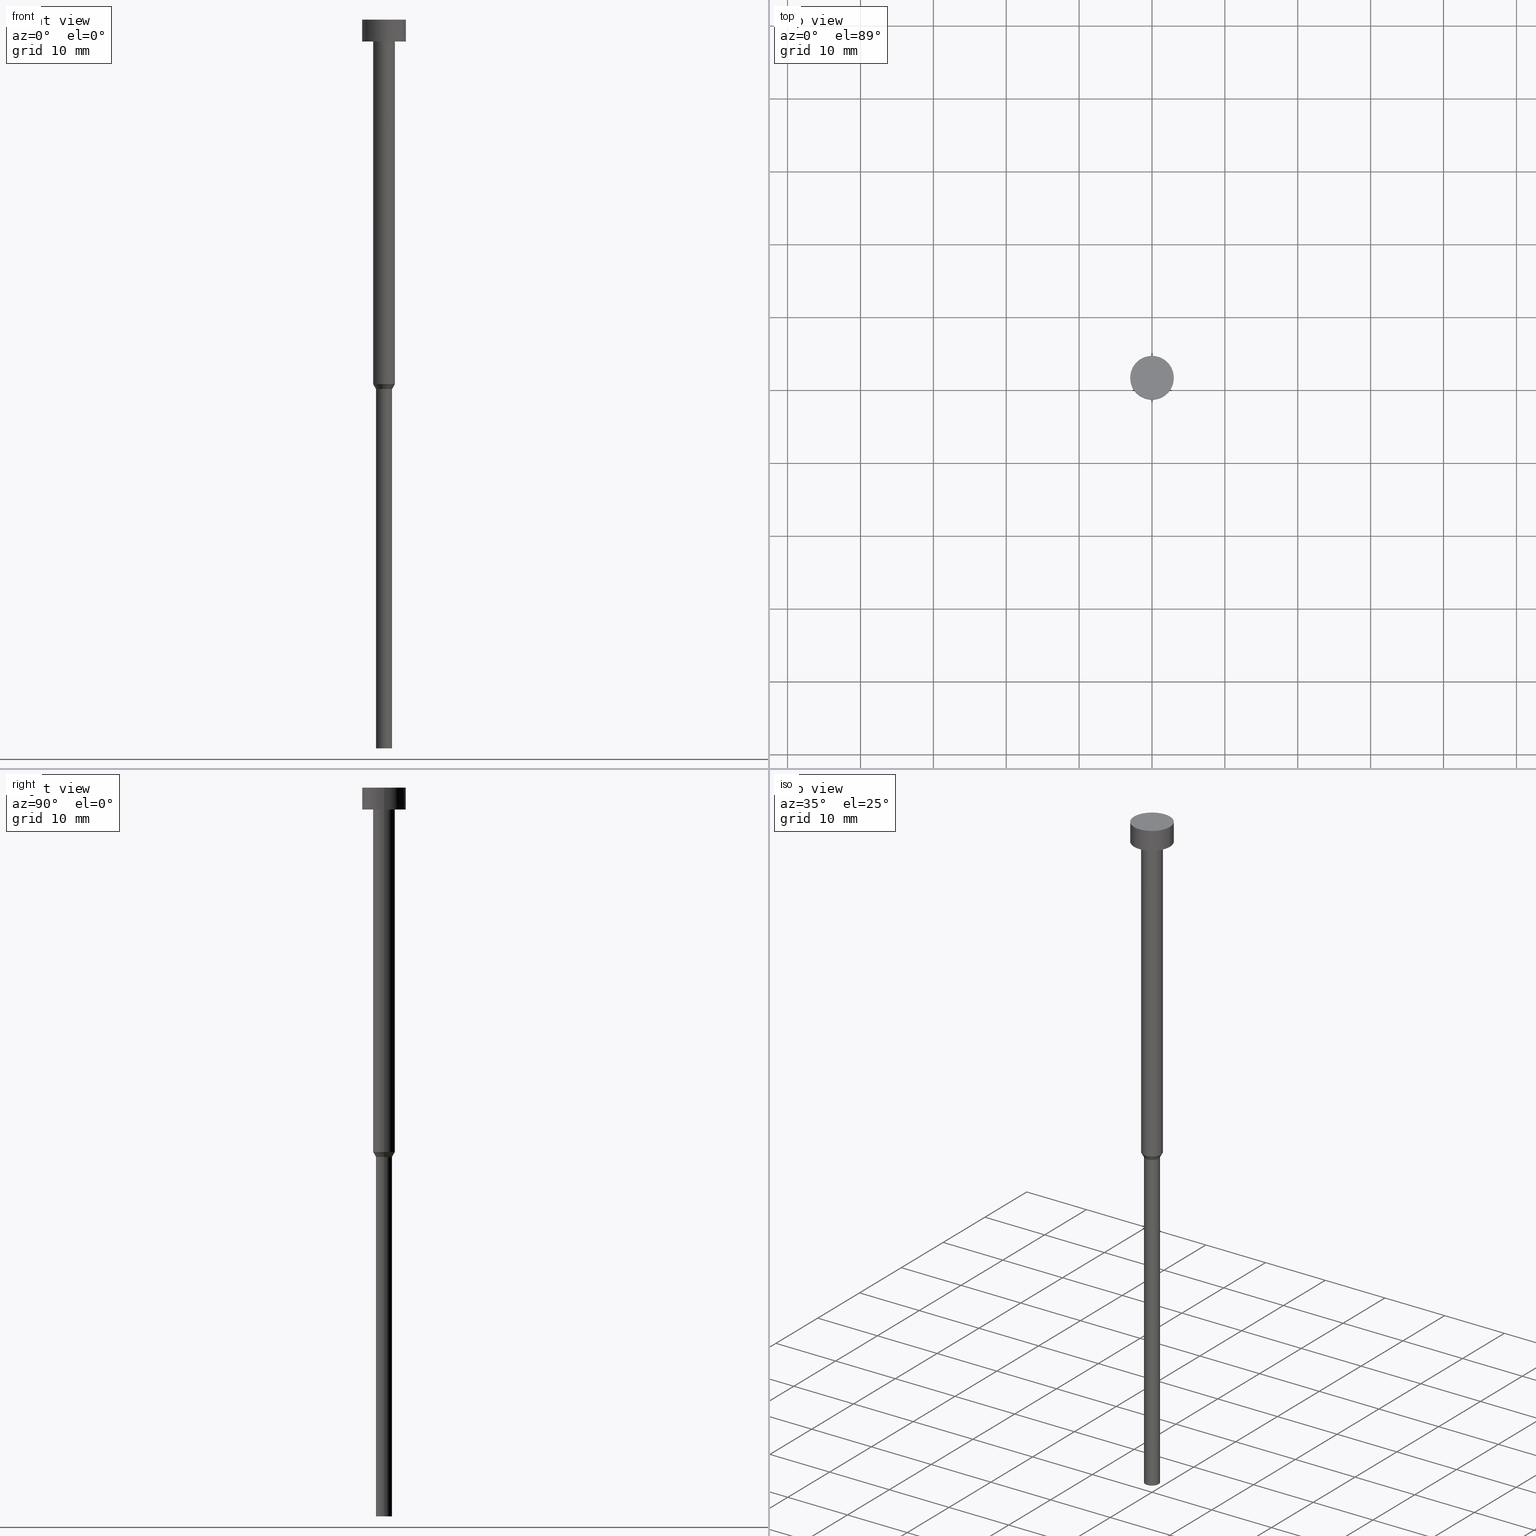
[diagram: canonical four-view strip — front | top / right | iso, engineering-drawing reading convention]
A machine part, canonical four-view strip (front | top / right | iso — engineering-drawing reading convention). The complete STEP part file that produces these views, byte-faithful:
ISO-10303-21;
HEADER;
FILE_DESCRIPTION (( 'STEP AP203' ),
    '1' );
FILE_NAME ('06d9.STEP',
    '2023-02-13T10:55:38',
    ( '' ),
    ( '' ),
    'SwSTEP 2.0',
    'SolidWorks 2019',
    '' );
FILE_SCHEMA (( 'CONFIG_CONTROL_DESIGN' ));
ENDSEC;

DATA;
#1 = DIRECTION ( 'NONE',  ( -0.000000000000000000, -0.000000000000000000, 1.000000000000000000 ) ) ;
#2 = CLOSED_SHELL ( 'NONE', ( #193, #57, #68, #61, #315, #157, #122, #299, #151, #342, #85 ) ) ;
#3 = CYLINDRICAL_SURFACE ( 'NONE', #277, 3.000000000000000000 ) ;
#4 = AXIS2_PLACEMENT_3D ( 'NONE', #230, #283, #281 ) ;
#5 = CARTESIAN_POINT ( 'NONE',  ( 0.000000000000000000, 0.000000000000000000, -50.00000000000000000 ) ) ;
#6 = CC_DESIGN_DATE_AND_TIME_ASSIGNMENT ( #263, #121, ( #141 ) ) ;
#7 = FACE_OUTER_BOUND ( 'NONE', #244, .T. ) ;
#8 = EDGE_CURVE ( 'NONE', #182, #17, #16, .T. ) ;
#9 = DIRECTION ( 'NONE',  ( -0.000000000000000000, -0.000000000000000000, 1.000000000000000000 ) ) ;
#10 = EDGE_CURVE ( 'NONE', #132, #156, #84, .T. ) ;
#11 = ORGANIZATION ( 'NEUR�EN�', 'NEUR�EN�', '' ) ;
#12 = LINE ( 'NONE', #229, #194 ) ;
#13 = APPROVAL_ROLE ( '' ) ;
#14 = EDGE_CURVE ( 'NONE', #198, #25, #134, .T. ) ;
#15 = DIRECTION ( 'NONE',  ( 0.000000000000000000, 0.000000000000000000, 1.000000000000000000 ) ) ;
#16 = CIRCLE ( 'NONE', #242, 3.000000000000000000 ) ;
#17 = VERTEX_POINT ( 'NONE', #276 ) ;
#18 = CC_DESIGN_APPROVAL ( #173, ( #141 ) ) ;
#19 = ORIENTED_EDGE ( 'NONE', *, *, #266, .T. ) ;
#20 = CARTESIAN_POINT ( 'NONE',  ( 0.000000000000000000, 0.000000000000000000, -50.69282032302754715 ) ) ;
#21 = ORIENTED_EDGE ( 'NONE', *, *, #93, .T. ) ;
#22 = DATE_AND_TIME ( #240, #354 ) ;
#23 = AXIS2_PLACEMENT_3D ( 'NONE', #168, #248, #274 ) ;
#24 = ORIENTED_EDGE ( 'NONE', *, *, #93, .F. ) ;
#25 = VERTEX_POINT ( 'NONE', #29 ) ;
#26 = CARTESIAN_POINT ( 'NONE',  ( 1.100000000000000089, 0.000000000000000000, -50.69282032302754715 ) ) ;
#27 = DIRECTION ( 'NONE',  ( 1.000000000000000000, 0.000000000000000000, 0.000000000000000000 ) ) ;
#28 = CC_DESIGN_PERSON_AND_ORGANIZATION_ASSIGNMENT ( #102, #155, ( #92 ) ) ;
#29 = CARTESIAN_POINT ( 'NONE',  ( 1.500000000000000000, 0.000000000000000000, -50.00000000000000000 ) ) ;
#30 = DIRECTION ( 'NONE',  ( -0.000000000000000000, -0.000000000000000000, 1.000000000000000000 ) ) ;
#31 = DIRECTION ( 'NONE',  ( -0.000000000000000000, -0.000000000000000000, 1.000000000000000000 ) ) ;
#32 = CARTESIAN_POINT ( 'NONE',  ( -3.000000000000000000, 3.673940397442059868E-16, -3.673940397442059868E-16 ) ) ;
#33 = PRODUCT_DEFINITION_FORMATION_WITH_SPECIFIED_SOURCE ( 'LIBOVOLN�', '', #170, .NOT_KNOWN. ) ;
#34 = DIRECTION ( 'NONE',  ( -0.000000000000000000, -0.000000000000000000, 1.000000000000000000 ) ) ;
#35 = LINE ( 'NONE', #64, #282 ) ;
#36 = DIRECTION ( 'NONE',  ( -0.000000000000000000, -0.000000000000000000, 1.000000000000000000 ) ) ;
#37 = AXIS2_PLACEMENT_3D ( 'NONE', #120, #234, #203 ) ;
#38 = CARTESIAN_POINT ( 'NONE',  ( 3.000000000000000000, 0.000000000000000000, 0.000000000000000000 ) ) ;
#39 = COORDINATED_UNIVERSAL_TIME_OFFSET ( 1, 0, .AHEAD. ) ;
#40 = VERTEX_POINT ( 'NONE', #86 ) ;
#41 = CALENDAR_DATE ( 2023, 13, 2 ) ;
#42 = CIRCLE ( 'NONE', #228, 1.500000000000000000 ) ;
#43 = CIRCLE ( 'NONE', #99, 1.500000000000000000 ) ;
#44 = APPROVAL_STATUS ( 'not_yet_approved' ) ;
#45 = VERTEX_POINT ( 'NONE', #26 ) ;
#46 = SECURITY_CLASSIFICATION_LEVEL ( 'unclassified' ) ;
#47 = EDGE_CURVE ( 'NONE', #17, #132, #52, .T. ) ;
#48 = ORIENTED_EDGE ( 'NONE', *, *, #10, .T. ) ;
#49 = EDGE_CURVE ( 'NONE', #271, #198, #54, .T. ) ;
#50 = SHAPE_DEFINITION_REPRESENTATION ( #214, #101 ) ;
#51 = CIRCLE ( 'NONE', #223, 1.500000000000000000 ) ;
#52 = LINE ( 'NONE', #278, #208 ) ;
#53 = EDGE_CURVE ( 'NONE', #125, #271, #82, .T. ) ;
#54 = LINE ( 'NONE', #331, #275 ) ;
#55 = CC_DESIGN_PERSON_AND_ORGANIZATION_ASSIGNMENT ( #71, #179, ( #170 ) ) ;
#56 = CARTESIAN_POINT ( 'NONE',  ( -1.100000000000000089, 1.347111479062088503E-16, -100.0000000000000000 ) ) ;
#57 = ADVANCED_FACE ( 'NONE', ( #251 ), #112, .T. ) ;
#58 = DIRECTION ( 'NONE',  ( -0.000000000000000000, -0.000000000000000000, 1.000000000000000000 ) ) ;
#59 = CIRCLE ( 'NONE', #238, 1.100000000000000089 ) ;
#60 = FACE_OUTER_BOUND ( 'NONE', #154, .T. ) ;
#61 = ADVANCED_FACE ( 'NONE', ( #273 ), #330, .T. ) ;
#62 = DIRECTION ( 'NONE',  ( 1.000000000000000000, 0.000000000000000000, 0.000000000000000000 ) ) ;
#63 = CARTESIAN_POINT ( 'NONE',  ( 1.100000000000000089, 0.000000000000000000, -100.0000000000000000 ) ) ;
#64 = CARTESIAN_POINT ( 'NONE',  ( 1.500000000000000000, 0.000000000000000000, 0.000000000000000000 ) ) ;
#65 = CC_DESIGN_PERSON_AND_ORGANIZATION_ASSIGNMENT ( #295, #264, ( #33 ) ) ;
#66 = LINE ( 'NONE', #38, #328 ) ;
#67 = DIRECTION ( 'NONE',  ( -0.000000000000000000, -0.000000000000000000, 1.000000000000000000 ) ) ;
#68 = ADVANCED_FACE ( 'NONE', ( #60 ), #177, .T. ) ;
#69 = ORIENTED_EDGE ( 'NONE', *, *, #115, .T. ) ;
#70 = CC_DESIGN_PERSON_AND_ORGANIZATION_ASSIGNMENT ( #243, #346, ( #141 ) ) ;
#71 = PERSON_AND_ORGANIZATION ( #124, #11 ) ;
#72 = ORIENTED_EDGE ( 'NONE', *, *, #130, .T. ) ;
#73 = ORIENTED_EDGE ( 'NONE', *, *, #8, .T. ) ;
#74 = DIRECTION ( 'NONE',  ( 1.000000000000000000, 0.000000000000000000, 0.000000000000000000 ) ) ;
#75 = EDGE_LOOP ( 'NONE', ( #355, #317, #21, #294 ) ) ;
#76 = COORDINATED_UNIVERSAL_TIME_OFFSET ( 1, 0, .AHEAD. ) ;
#77 = ORIENTED_EDGE ( 'NONE', *, *, #318, .T. ) ;
#78 = DIRECTION ( 'NONE',  ( 1.000000000000000000, 0.000000000000000000, 0.000000000000000000 ) ) ;
#79 = CONICAL_SURFACE ( 'NONE', #313, 1.500000000000000000, 0.5235987755983019243 ) ;
#80 = DIRECTION ( 'NONE',  ( -0.000000000000000000, -0.000000000000000000, 1.000000000000000000 ) ) ;
#81 = DIRECTION ( 'NONE',  ( -0.000000000000000000, -0.000000000000000000, 1.000000000000000000 ) ) ;
#82 = LINE ( 'NONE', #163, #320 ) ;
#83 = AXIS2_PLACEMENT_3D ( 'NONE', #225, #192, #195 ) ;
#84 = CIRCLE ( 'NONE', #83, 3.000000000000000000 ) ;
#85 = ADVANCED_FACE ( 'NONE', ( #224 ), #139, .T. ) ;
#86 = CARTESIAN_POINT ( 'NONE',  ( 1.500000000000000000, 0.000000000000000000, -3.000000000000000888 ) ) ;
#87 = AXIS2_PLACEMENT_3D ( 'NONE', #20, #212, #74 ) ;
#88 = CARTESIAN_POINT ( 'NONE',  ( 0.000000000000000000, 0.000000000000000000, 0.000000000000000000 ) ) ;
#89 = DIRECTION ( 'NONE',  ( -0.000000000000000000, -0.000000000000000000, 1.000000000000000000 ) ) ;
#90 = EDGE_CURVE ( 'NONE', #17, #182, #191, .T. ) ;
#91 = FACE_OUTER_BOUND ( 'NONE', #103, .T. ) ;
#92 = PRODUCT_DEFINITION ( 'NEZN�M�', '', #33, #187 ) ;
#93 = EDGE_CURVE ( 'NONE', #268, #45, #351, .T. ) ;
#94 = CARTESIAN_POINT ( 'NONE',  ( 1.500000000000000000, 0.000000000000000000, -50.00000000000000000 ) ) ;
#95 = DIRECTION ( 'NONE',  ( -0.000000000000000000, -0.000000000000000000, 1.000000000000000000 ) ) ;
#96 = APPLICATION_PROTOCOL_DEFINITION ( 'international standard', 'config_control_design', 1994, #272 ) ;
#97 = ORIENTED_EDGE ( 'NONE', *, *, #115, .F. ) ;
#98 = APPLICATION_CONTEXT ( 'configuration controlled 3d designs of mechanical parts and assemblies' ) ;
#99 = AXIS2_PLACEMENT_3D ( 'NONE', #310, #95, #258 ) ;
#100 = ORIENTED_EDGE ( 'NONE', *, *, #302, .F. ) ;
#101 = ADVANCED_BREP_SHAPE_REPRESENTATION ( '06d9', ( #206, #172 ), #136 ) ;
#102 = PERSON_AND_ORGANIZATION ( #124, #11 ) ;
#103 = EDGE_LOOP ( 'NONE', ( #105, #184, #77, #97 ) ) ;
#104 = CARTESIAN_POINT ( 'NONE',  ( 0.000000000000000000, 0.000000000000000000, 0.000000000000000000 ) ) ;
#105 = ORIENTED_EDGE ( 'NONE', *, *, #266, .F. ) ;
#106 = CC_DESIGN_SECURITY_CLASSIFICATION ( #141, ( #33 ) ) ;
#107 = VERTEX_POINT ( 'NONE', #327 ) ;
#108 = DIRECTION ( 'NONE',  ( 1.000000000000000000, 0.000000000000000000, 0.000000000000000000 ) ) ;
#109 = CARTESIAN_POINT ( 'NONE',  ( 0.000000000000000000, 0.000000000000000000, -3.000000000000000888 ) ) ;
#110 = AXIS2_PLACEMENT_3D ( 'NONE', #88, #34, #142 ) ;
#111 = CARTESIAN_POINT ( 'NONE',  ( 0.000000000000000000, 0.000000000000000000, -50.00000000000000000 ) ) ;
#112 = CYLINDRICAL_SURFACE ( 'NONE', #345, 1.500000000000000000 ) ;
#113 = CARTESIAN_POINT ( 'NONE',  ( 1.100000000000000089, 0.000000000000000000, 0.000000000000000000 ) ) ;
#114 = DIRECTION ( 'NONE',  ( -0.000000000000000000, -0.000000000000000000, 1.000000000000000000 ) ) ;
#115 = EDGE_CURVE ( 'NONE', #107, #40, #42, .T. ) ;
#116 = CARTESIAN_POINT ( 'NONE',  ( 3.000000000000000000, 0.000000000000000000, -3.673940397442059868E-16 ) ) ;
#117 = CYLINDRICAL_SURFACE ( 'NONE', #4, 3.000000000000000000 ) ;
#118 = DIRECTION ( 'NONE',  ( 0.5000000000000026645, 0.000000000000000000, 0.8660254037844371533 ) ) ;
#119 = LOCAL_TIME ( 11, 55, 38.00000000000000000, #189 ) ;
#120 = CARTESIAN_POINT ( 'NONE',  ( 0.000000000000000000, 0.000000000000000000, -100.0000000000000000 ) ) ;
#121 = DATE_TIME_ROLE ( 'classification_date' ) ;
#122 = ADVANCED_FACE ( 'NONE', ( #249 ), #79, .T. ) ;
#123 = DATE_AND_TIME ( #343, #131 ) ;
#124 = PERSON ( 'NEUR�EN�', 'NEUR�EN�', 'NEUR�EN�', ('NEUR�EN�'), ('NEUR�EN�'), ('NEUR�EN�') ) ;
#125 = VERTEX_POINT ( 'NONE', #56 ) ;
#126 = CIRCLE ( 'NONE', #145, 1.100000000000000089 ) ;
#127 = ORIENTED_EDGE ( 'NONE', *, *, #8, .F. ) ;
#128 =( NAMED_UNIT ( * ) SI_UNIT ( $, .STERADIAN. ) SOLID_ANGLE_UNIT ( ) );
#129 = ORIENTED_EDGE ( 'NONE', *, *, #197, .F. ) ;
#130 = EDGE_CURVE ( 'NONE', #45, #25, #334, .T. ) ;
#131 = LOCAL_TIME ( 11, 55, 38.00000000000000000, #147 ) ;
#132 = VERTEX_POINT ( 'NONE', #32 ) ;
#133 = DIRECTION ( 'NONE',  ( 0.000000000000000000, -0.000000000000000000, 1.000000000000000000 ) ) ;
#134 = CIRCLE ( 'NONE', #286, 1.500000000000000000 ) ;
#135 = DIRECTION ( 'NONE',  ( 1.000000000000000000, 0.000000000000000000, 0.000000000000000000 ) ) ;
#136 =( GEOMETRIC_REPRESENTATION_CONTEXT ( 3 ) GLOBAL_UNCERTAINTY_ASSIGNED_CONTEXT ( ( #148 ) ) GLOBAL_UNIT_ASSIGNED_CONTEXT ( ( #186, #236, #128 ) ) REPRESENTATION_CONTEXT ( 'NONE', 'WORKASPACE' ) );
#137 = DIRECTION ( 'NONE',  ( 1.000000000000000000, 0.000000000000000000, 0.000000000000000000 ) ) ;
#138 = ORIENTED_EDGE ( 'NONE', *, *, #260, .T. ) ;
#139 = PLANE ( 'NONE',  #226 ) ;
#140 = CARTESIAN_POINT ( 'NONE',  ( 0.000000000000000000, 0.000000000000000000, 0.000000000000000000 ) ) ;
#141 = SECURITY_CLASSIFICATION ( '', '', #46 ) ;
#142 = DIRECTION ( 'NONE',  ( 1.000000000000000000, 0.000000000000000000, 0.000000000000000000 ) ) ;
#143 = DIRECTION ( 'NONE',  ( 1.000000000000000000, 0.000000000000000000, 0.000000000000000000 ) ) ;
#144 = DIRECTION ( 'NONE',  ( 1.000000000000000000, 0.000000000000000000, 0.000000000000000000 ) ) ;
#145 = AXIS2_PLACEMENT_3D ( 'NONE', #338, #89, #261 ) ;
#146 = CALENDAR_DATE ( 2023, 13, 2 ) ;
#147 = COORDINATED_UNIVERSAL_TIME_OFFSET ( 1, 0, .AHEAD. ) ;
#148 = UNCERTAINTY_MEASURE_WITH_UNIT (LENGTH_MEASURE( 1.000000000000000082E-05 ), #186, 'distance_accuracy_value', 'NONE');
#149 = EDGE_LOOP ( 'NONE', ( #239, #69 ) ) ;
#150 = DATE_AND_TIME ( #41, #204 ) ;
#151 = ADVANCED_FACE ( 'NONE', ( #169, #207 ), #312, .T. ) ;
#152 = ORIENTED_EDGE ( 'NONE', *, *, #174, .F. ) ;
#153 = DIRECTION ( 'NONE',  ( 1.000000000000000000, 0.000000000000000000, 0.000000000000000000 ) ) ;
#154 = EDGE_LOOP ( 'NONE', ( #188, #164, #296, #324 ) ) ;
#155 = PERSON_AND_ORGANIZATION_ROLE ( 'creator' ) ;
#156 = VERTEX_POINT ( 'NONE', #116 ) ;
#157 = ADVANCED_FACE ( 'NONE', ( #287 ), #336, .T. ) ;
#158 = APPROVAL_STATUS ( 'not_yet_approved' ) ;
#159 = EDGE_LOOP ( 'NONE', ( #241, #48 ) ) ;
#160 = APPROVAL ( #181, 'NEUR�EN�' ) ;
#161 = CIRCLE ( 'NONE', #347, 3.000000000000000000 ) ;
#162 = DIRECTION ( 'NONE',  ( 1.000000000000000000, 0.000000000000000000, 0.000000000000000000 ) ) ;
#163 = CARTESIAN_POINT ( 'NONE',  ( -1.100000000000000089, 1.347111479062088503E-16, 0.000000000000000000 ) ) ;
#164 = ORIENTED_EDGE ( 'NONE', *, *, #49, .T. ) ;
#165 = COORDINATED_UNIVERSAL_TIME_OFFSET ( 1, 0, .AHEAD. ) ;
#166 = LOCAL_TIME ( 11, 55, 38.00000000000000000, #165 ) ;
#167 = CARTESIAN_POINT ( 'NONE',  ( 0.000000000000000000, 0.000000000000000000, -1.836970198721029934E-16 ) ) ;
#168 = CARTESIAN_POINT ( 'NONE',  ( 0.000000000000000000, 0.000000000000000000, -50.00000000000000000 ) ) ;
#169 = FACE_BOUND ( 'NONE', #149, .T. ) ;
#170 = PRODUCT ( '06d9', '06d9', '', ( #316 ) ) ;
#171 = CYLINDRICAL_SURFACE ( 'NONE', #110, 1.500000000000000000 ) ;
#172 = AXIS2_PLACEMENT_3D ( 'NONE', #341, #15, #297 ) ;
#173 = APPROVAL ( #158, 'NEUR�EN�' ) ;
#174 = EDGE_CURVE ( 'NONE', #156, #132, #161, .T. ) ;
#175 = CARTESIAN_POINT ( 'NONE',  ( 0.000000000000000000, -3.000000000000000000, -3.000000000000000888 ) ) ;
#176 = DIRECTION ( 'NONE',  ( -1.000000000000000000, 0.000000000000000000, -0.000000000000000000 ) ) ;
#177 = CONICAL_SURFACE ( 'NONE', #23, 1.500000000000000000, 0.5235987755983019243 ) ;
#178 = DIRECTION ( 'NONE',  ( 0.000000000000000000, 0.000000000000000000, -1.000000000000000000 ) ) ;
#179 = PERSON_AND_ORGANIZATION_ROLE ( 'design_owner' ) ;
#180 = EDGE_LOOP ( 'NONE', ( #322, #218, #298, #325 ) ) ;
#181 = APPROVAL_STATUS ( 'not_yet_approved' ) ;
#182 = VERTEX_POINT ( 'NONE', #284 ) ;
#183 = PERSON_AND_ORGANIZATION ( #124, #11 ) ;
#184 = ORIENTED_EDGE ( 'NONE', *, *, #14, .T. ) ;
#185 = AXIS2_PLACEMENT_3D ( 'NONE', #140, #232, #335 ) ;
#186 =( LENGTH_UNIT ( ) NAMED_UNIT ( * ) SI_UNIT ( .MILLI., .METRE. ) );
#187 = DESIGN_CONTEXT ( 'detailed design', #98, 'design' ) ;
#188 = ORIENTED_EDGE ( 'NONE', *, *, #256, .T. ) ;
#189 = COORDINATED_UNIVERSAL_TIME_OFFSET ( 1, 0, .AHEAD. ) ;
#190 = ORIENTED_EDGE ( 'NONE', *, *, #326, .T. ) ;
#191 = CIRCLE ( 'NONE', #254, 3.000000000000000000 ) ;
#192 = DIRECTION ( 'NONE',  ( -0.000000000000000000, -0.000000000000000000, 1.000000000000000000 ) ) ;
#193 = ADVANCED_FACE ( 'NONE', ( #201 ), #117, .T. ) ;
#194 = VECTOR ( 'NONE', #202, 1000.000000000000000 ) ;
#195 = DIRECTION ( 'NONE',  ( 1.000000000000000000, 0.000000000000000000, 0.000000000000000000 ) ) ;
#196 = DIRECTION ( 'NONE',  ( 1.000000000000000000, 0.000000000000000000, 0.000000000000000000 ) ) ;
#197 = EDGE_CURVE ( 'NONE', #125, #268, #59, .T. ) ;
#198 = VERTEX_POINT ( 'NONE', #257 ) ;
#199 = AXIS2_PLACEMENT_3D ( 'NONE', #175, #178, #176 ) ;
#200 = DIRECTION ( 'NONE',  ( -0.5000000000000026645, 6.123233995736798083E-17, 0.8660254037844371533 ) ) ;
#201 = FACE_OUTER_BOUND ( 'NONE', #291, .T. ) ;
#202 = DIRECTION ( 'NONE',  ( -0.000000000000000000, -0.000000000000000000, 1.000000000000000000 ) ) ;
#203 = DIRECTION ( 'NONE',  ( -1.000000000000000000, 0.000000000000000000, -0.000000000000000000 ) ) ;
#204 = LOCAL_TIME ( 11, 55, 38.00000000000000000, #76 ) ;
#205 = CARTESIAN_POINT ( 'NONE',  ( 0.000000000000000000, 0.000000000000000000, -100.0000000000000000 ) ) ;
#206 = MANIFOLD_SOLID_BREP ( 'Rotovat1', #2 ) ;
#207 = FACE_OUTER_BOUND ( 'NONE', #213, .T. ) ;
#208 = VECTOR ( 'NONE', #349, 1000.000000000000000 ) ;
#209 = DIRECTION ( 'NONE',  ( -0.000000000000000000, -0.000000000000000000, 1.000000000000000000 ) ) ;
#210 = CIRCLE ( 'NONE', #245, 1.100000000000000089 ) ;
#211 = ORIENTED_EDGE ( 'NONE', *, *, #90, .F. ) ;
#212 = DIRECTION ( 'NONE',  ( -0.000000000000000000, -0.000000000000000000, 1.000000000000000000 ) ) ;
#213 = EDGE_LOOP ( 'NONE', ( #127, #211 ) ) ;
#214 = PRODUCT_DEFINITION_SHAPE ( 'NONE', 'NONE',  #92 ) ;
#215 = PERSON_AND_ORGANIZATION ( #124, #11 ) ;
#216 = ORIENTED_EDGE ( 'NONE', *, *, #318, .F. ) ;
#217 = CC_DESIGN_APPROVAL ( #280, ( #33 ) ) ;
#218 = ORIENTED_EDGE ( 'NONE', *, *, #90, .T. ) ;
#219 = CC_DESIGN_PERSON_AND_ORGANIZATION_ASSIGNMENT ( #183, #292, ( #33 ) ) ;
#220 = EDGE_LOOP ( 'NONE', ( #190, #319, #265, #24 ) ) ;
#221 = CALENDAR_DATE ( 2023, 13, 2 ) ;
#222 = DIRECTION ( 'NONE',  ( -0.000000000000000000, -0.000000000000000000, 1.000000000000000000 ) ) ;
#223 = AXIS2_PLACEMENT_3D ( 'NONE', #5, #9, #143 ) ;
#224 = FACE_OUTER_BOUND ( 'NONE', #159, .T. ) ;
#225 = CARTESIAN_POINT ( 'NONE',  ( 0.000000000000000000, 0.000000000000000000, -3.673940397442059868E-16 ) ) ;
#226 = AXIS2_PLACEMENT_3D ( 'NONE', #167, #133, #27 ) ;
#227 = DIRECTION ( 'NONE',  ( -0.000000000000000000, -0.000000000000000000, 1.000000000000000000 ) ) ;
#228 = AXIS2_PLACEMENT_3D ( 'NONE', #109, #80, #135 ) ;
#229 = CARTESIAN_POINT ( 'NONE',  ( -1.500000000000000000, 1.836970198721029934E-16, 0.000000000000000000 ) ) ;
#230 = CARTESIAN_POINT ( 'NONE',  ( 0.000000000000000000, 0.000000000000000000, 0.000000000000000000 ) ) ;
#231 = PLANE ( 'NONE',  #37 ) ;
#232 = DIRECTION ( 'NONE',  ( -0.000000000000000000, -0.000000000000000000, 1.000000000000000000 ) ) ;
#233 = APPROVAL_PERSON_ORGANIZATION ( #215, #280, #13 ) ;
#234 = DIRECTION ( 'NONE',  ( 0.000000000000000000, 0.000000000000000000, -1.000000000000000000 ) ) ;
#235 = PRODUCT_RELATED_PRODUCT_CATEGORY ( 'detail', '', ( #170 ) ) ;
#236 =( NAMED_UNIT ( * ) PLANE_ANGLE_UNIT ( ) SI_UNIT ( $, .RADIAN. ) );
#237 = DATE_TIME_ROLE ( 'creation_date' ) ;
#238 = AXIS2_PLACEMENT_3D ( 'NONE', #285, #36, #144 ) ;
#239 = ORIENTED_EDGE ( 'NONE', *, *, #302, .T. ) ;
#240 = CALENDAR_DATE ( 2023, 13, 2 ) ;
#241 = ORIENTED_EDGE ( 'NONE', *, *, #174, .T. ) ;
#242 = AXIS2_PLACEMENT_3D ( 'NONE', #300, #353, #78 ) ;
#243 = PERSON_AND_ORGANIZATION ( #124, #11 ) ;
#244 = EDGE_LOOP ( 'NONE', ( #314, #129 ) ) ;
#245 = AXIS2_PLACEMENT_3D ( 'NONE', #205, #311, #259 ) ;
#246 = CC_DESIGN_DATE_AND_TIME_ASSIGNMENT ( #123, #237, ( #92 ) ) ;
#247 = EDGE_LOOP ( 'NONE', ( #269, #289, #72, #348 ) ) ;
#248 = DIRECTION ( 'NONE',  ( -0.000000000000000000, -0.000000000000000000, 1.000000000000000000 ) ) ;
#249 = FACE_OUTER_BOUND ( 'NONE', #247, .T. ) ;
#250 = CC_DESIGN_APPROVAL ( #160, ( #92 ) ) ;
#251 = FACE_OUTER_BOUND ( 'NONE', #333, .T. ) ;
#252 = DATE_AND_TIME ( #221, #166 ) ;
#253 = CARTESIAN_POINT ( 'NONE',  ( 0.000000000000000000, 0.000000000000000000, -3.000000000000000888 ) ) ;
#254 = AXIS2_PLACEMENT_3D ( 'NONE', #253, #1, #108 ) ;
#255 = FACE_OUTER_BOUND ( 'NONE', #180, .T. ) ;
#256 = EDGE_CURVE ( 'NONE', #45, #271, #126, .T. ) ;
#257 = CARTESIAN_POINT ( 'NONE',  ( -1.500000000000000000, 1.836970198721029934E-16, -50.00000000000000000 ) ) ;
#258 = DIRECTION ( 'NONE',  ( 1.000000000000000000, 0.000000000000000000, 0.000000000000000000 ) ) ;
#259 = DIRECTION ( 'NONE',  ( 1.000000000000000000, 0.000000000000000000, 0.000000000000000000 ) ) ;
#260 = EDGE_CURVE ( 'NONE', #25, #198, #51, .T. ) ;
#261 = DIRECTION ( 'NONE',  ( 1.000000000000000000, 0.000000000000000000, 0.000000000000000000 ) ) ;
#262 = APPROVAL_PERSON_ORGANIZATION ( #270, #173, #352 ) ;
#263 = DATE_AND_TIME ( #146, #119 ) ;
#264 = PERSON_AND_ORGANIZATION_ROLE ( 'design_supplier' ) ;
#265 = ORIENTED_EDGE ( 'NONE', *, *, #256, .F. ) ;
#266 = EDGE_CURVE ( 'NONE', #198, #107, #12, .T. ) ;
#267 = APPROVAL_DATE_TIME ( #150, #280 ) ;
#268 = VERTEX_POINT ( 'NONE', #63 ) ;
#269 = ORIENTED_EDGE ( 'NONE', *, *, #49, .F. ) ;
#270 = PERSON_AND_ORGANIZATION ( #124, #11 ) ;
#271 = VERTEX_POINT ( 'NONE', #308 ) ;
#272 = APPLICATION_CONTEXT ( 'configuration controlled 3d designs of mechanical parts and assemblies' ) ;
#273 = FACE_OUTER_BOUND ( 'NONE', #220, .T. ) ;
#274 = DIRECTION ( 'NONE',  ( 1.000000000000000000, 0.000000000000000000, 0.000000000000000000 ) ) ;
#275 = VECTOR ( 'NONE', #200, 1000.000000000000000 ) ;
#276 = CARTESIAN_POINT ( 'NONE',  ( -3.000000000000000000, 3.673940397442059868E-16, -3.000000000000000888 ) ) ;
#277 = AXIS2_PLACEMENT_3D ( 'NONE', #104, #209, #153 ) ;
#278 = CARTESIAN_POINT ( 'NONE',  ( -3.000000000000000000, 3.673940397442059868E-16, 0.000000000000000000 ) ) ;
#279 = CARTESIAN_POINT ( 'NONE',  ( 0.000000000000000000, 0.000000000000000000, 0.000000000000000000 ) ) ;
#280 = APPROVAL ( #44, 'NEUR�EN�' ) ;
#281 = DIRECTION ( 'NONE',  ( 1.000000000000000000, 0.000000000000000000, 0.000000000000000000 ) ) ;
#282 = VECTOR ( 'NONE', #339, 1000.000000000000000 ) ;
#283 = DIRECTION ( 'NONE',  ( -0.000000000000000000, -0.000000000000000000, 1.000000000000000000 ) ) ;
#284 = CARTESIAN_POINT ( 'NONE',  ( 3.000000000000000000, 0.000000000000000000, -3.000000000000000888 ) ) ;
#285 = CARTESIAN_POINT ( 'NONE',  ( 0.000000000000000000, 0.000000000000000000, -100.0000000000000000 ) ) ;
#286 = AXIS2_PLACEMENT_3D ( 'NONE', #301, #222, #137 ) ;
#287 = FACE_OUTER_BOUND ( 'NONE', #75, .T. ) ;
#288 = PERSON_AND_ORGANIZATION ( #124, #11 ) ;
#289 = ORIENTED_EDGE ( 'NONE', *, *, #350, .T. ) ;
#290 = APPROVAL_DATE_TIME ( #22, #160 ) ;
#291 = EDGE_LOOP ( 'NONE', ( #73, #304, #152, #344 ) ) ;
#292 = PERSON_AND_ORGANIZATION_ROLE ( 'creator' ) ;
#293 = VECTOR ( 'NONE', #227, 1000.000000000000000 ) ;
#294 = ORIENTED_EDGE ( 'NONE', *, *, #350, .F. ) ;
#295 = PERSON_AND_ORGANIZATION ( #124, #11 ) ;
#296 = ORIENTED_EDGE ( 'NONE', *, *, #260, .F. ) ;
#297 = DIRECTION ( 'NONE',  ( 1.000000000000000000, 0.000000000000000000, 0.000000000000000000 ) ) ;
#298 = ORIENTED_EDGE ( 'NONE', *, *, #329, .T. ) ;
#299 = ADVANCED_FACE ( 'NONE', ( #91 ), #171, .T. ) ;
#300 = CARTESIAN_POINT ( 'NONE',  ( 0.000000000000000000, 0.000000000000000000, -3.000000000000000888 ) ) ;
#301 = CARTESIAN_POINT ( 'NONE',  ( 0.000000000000000000, 0.000000000000000000, -50.00000000000000000 ) ) ;
#302 = EDGE_CURVE ( 'NONE', #40, #107, #43, .T. ) ;
#303 = APPROVAL_DATE_TIME ( #252, #173 ) ;
#304 = ORIENTED_EDGE ( 'NONE', *, *, #47, .T. ) ;
#305 = DIRECTION ( 'NONE',  ( 1.000000000000000000, 0.000000000000000000, 0.000000000000000000 ) ) ;
#306 = CARTESIAN_POINT ( 'NONE',  ( 0.000000000000000000, 0.000000000000000000, 0.000000000000000000 ) ) ;
#307 = CARTESIAN_POINT ( 'NONE',  ( 0.000000000000000000, 0.000000000000000000, -3.673940397442059868E-16 ) ) ;
#308 = CARTESIAN_POINT ( 'NONE',  ( -1.100000000000000089, 1.347111479062088503E-16, -50.69282032302754715 ) ) ;
#309 = APPROVAL_PERSON_ORGANIZATION ( #288, #160, #323 ) ;
#310 = CARTESIAN_POINT ( 'NONE',  ( 0.000000000000000000, 0.000000000000000000, -3.000000000000000888 ) ) ;
#311 = DIRECTION ( 'NONE',  ( -0.000000000000000000, -0.000000000000000000, 1.000000000000000000 ) ) ;
#312 = PLANE ( 'NONE',  #199 ) ;
#313 = AXIS2_PLACEMENT_3D ( 'NONE', #111, #81, #196 ) ;
#314 = ORIENTED_EDGE ( 'NONE', *, *, #326, .F. ) ;
#315 = ADVANCED_FACE ( 'NONE', ( #7 ), #231, .T. ) ;
#316 = MECHANICAL_CONTEXT ( 'NONE', #272, 'mechanical' ) ;
#317 = ORIENTED_EDGE ( 'NONE', *, *, #197, .T. ) ;
#318 = EDGE_CURVE ( 'NONE', #25, #40, #35, .T. ) ;
#319 = ORIENTED_EDGE ( 'NONE', *, *, #53, .T. ) ;
#320 = VECTOR ( 'NONE', #31, 1000.000000000000000 ) ;
#321 = CIRCLE ( 'NONE', #87, 1.100000000000000089 ) ;
#322 = ORIENTED_EDGE ( 'NONE', *, *, #47, .F. ) ;
#323 = APPROVAL_ROLE ( '' ) ;
#324 = ORIENTED_EDGE ( 'NONE', *, *, #130, .F. ) ;
#325 = ORIENTED_EDGE ( 'NONE', *, *, #10, .F. ) ;
#326 = EDGE_CURVE ( 'NONE', #268, #125, #210, .T. ) ;
#327 = CARTESIAN_POINT ( 'NONE',  ( -1.500000000000000000, 1.836970198721029934E-16, -3.000000000000000888 ) ) ;
#328 = VECTOR ( 'NONE', #67, 1000.000000000000000 ) ;
#329 = EDGE_CURVE ( 'NONE', #182, #156, #66, .T. ) ;
#330 = CYLINDRICAL_SURFACE ( 'NONE', #332, 1.100000000000000089 ) ;
#331 = CARTESIAN_POINT ( 'NONE',  ( -1.500000000000000000, 1.836970198721029934E-16, -50.00000000000000000 ) ) ;
#332 = AXIS2_PLACEMENT_3D ( 'NONE', #306, #58, #162 ) ;
#333 = EDGE_LOOP ( 'NONE', ( #138, #19, #100, #216 ) ) ;
#334 = LINE ( 'NONE', #94, #337 ) ;
#335 = DIRECTION ( 'NONE',  ( 1.000000000000000000, 0.000000000000000000, 0.000000000000000000 ) ) ;
#336 = CYLINDRICAL_SURFACE ( 'NONE', #185, 1.100000000000000089 ) ;
#337 = VECTOR ( 'NONE', #118, 1000.000000000000000 ) ;
#338 = CARTESIAN_POINT ( 'NONE',  ( 0.000000000000000000, 0.000000000000000000, -50.69282032302754715 ) ) ;
#339 = DIRECTION ( 'NONE',  ( -0.000000000000000000, -0.000000000000000000, 1.000000000000000000 ) ) ;
#340 = APPLICATION_PROTOCOL_DEFINITION ( 'international standard', 'config_control_design', 1994, #98 ) ;
#341 = CARTESIAN_POINT ( 'NONE',  ( 0.000000000000000000, 0.000000000000000000, 0.000000000000000000 ) ) ;
#342 = ADVANCED_FACE ( 'NONE', ( #255 ), #3, .T. ) ;
#343 = CALENDAR_DATE ( 2023, 13, 2 ) ;
#344 = ORIENTED_EDGE ( 'NONE', *, *, #329, .F. ) ;
#345 = AXIS2_PLACEMENT_3D ( 'NONE', #279, #30, #305 ) ;
#346 = PERSON_AND_ORGANIZATION_ROLE ( 'classification_officer' ) ;
#347 = AXIS2_PLACEMENT_3D ( 'NONE', #307, #114, #62 ) ;
#348 = ORIENTED_EDGE ( 'NONE', *, *, #14, .F. ) ;
#349 = DIRECTION ( 'NONE',  ( -0.000000000000000000, -0.000000000000000000, 1.000000000000000000 ) ) ;
#350 = EDGE_CURVE ( 'NONE', #271, #45, #321, .T. ) ;
#351 = LINE ( 'NONE', #113, #293 ) ;
#352 = APPROVAL_ROLE ( '' ) ;
#353 = DIRECTION ( 'NONE',  ( -0.000000000000000000, -0.000000000000000000, 1.000000000000000000 ) ) ;
#354 = LOCAL_TIME ( 11, 55, 38.00000000000000000, #39 ) ;
#355 = ORIENTED_EDGE ( 'NONE', *, *, #53, .F. ) ;
ENDSEC;
END-ISO-10303-21;
